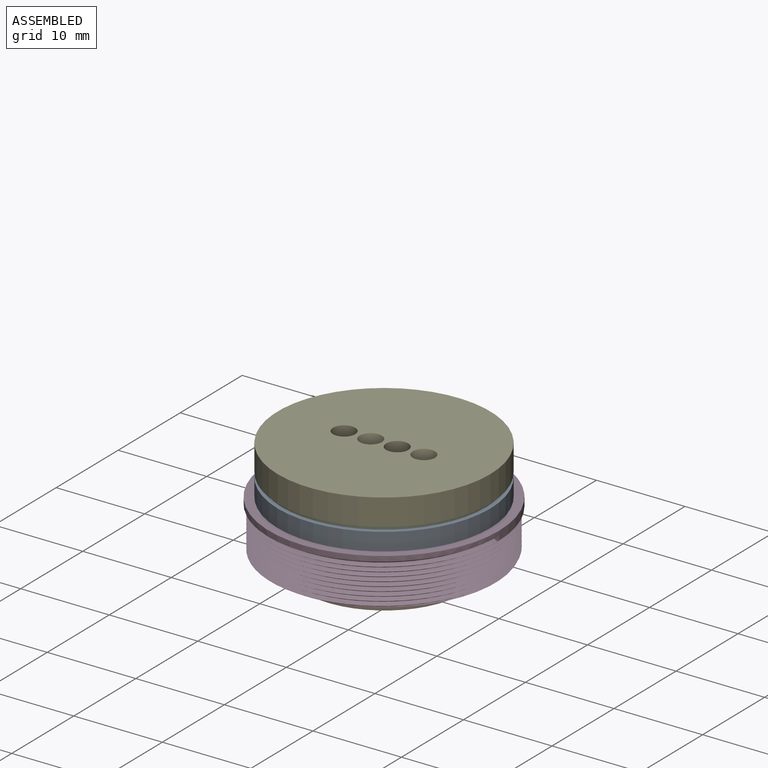
[diagram: assembled view]
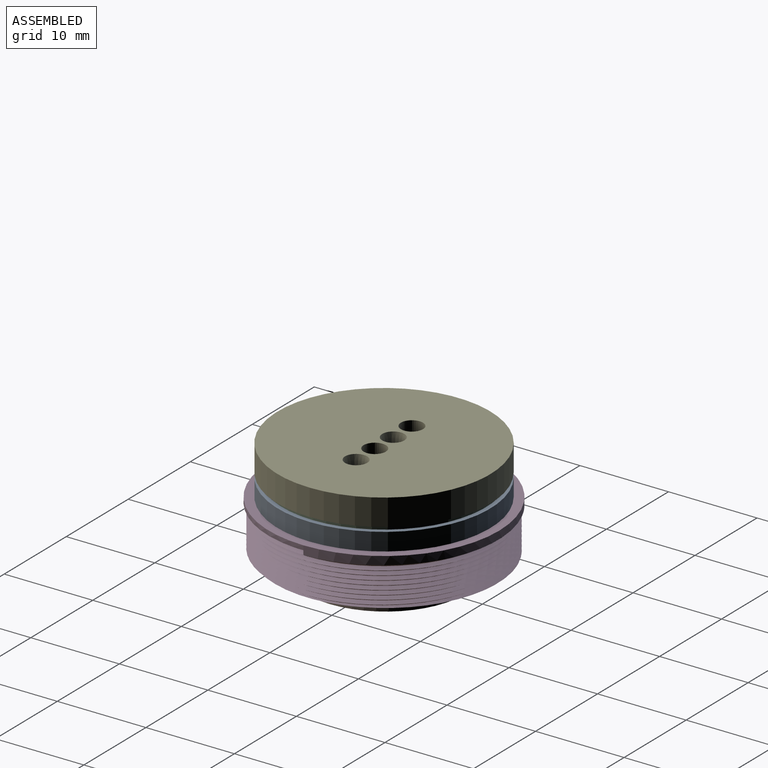
[diagram: assembled view, second angle]
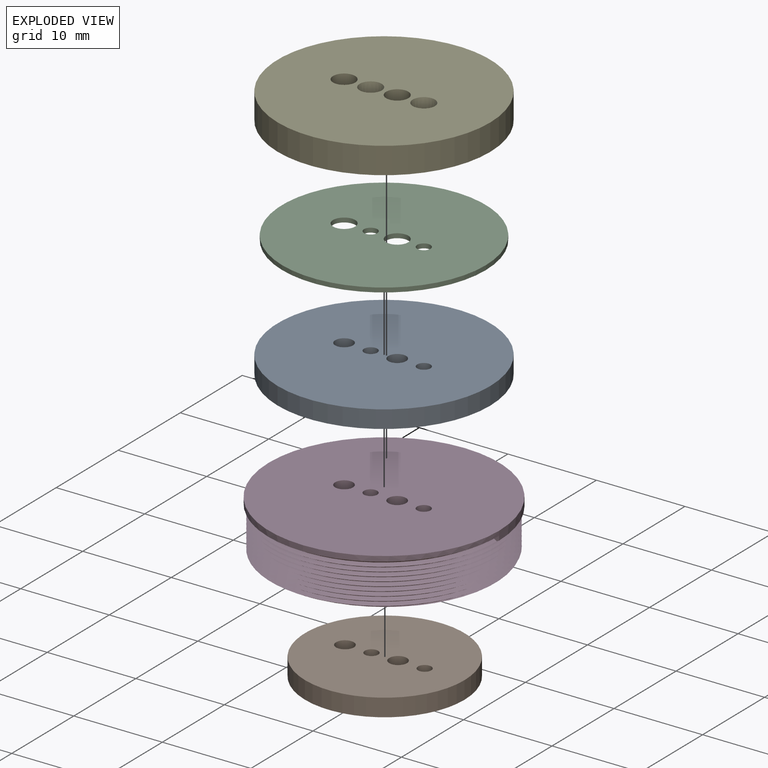
[diagram: exploded view]
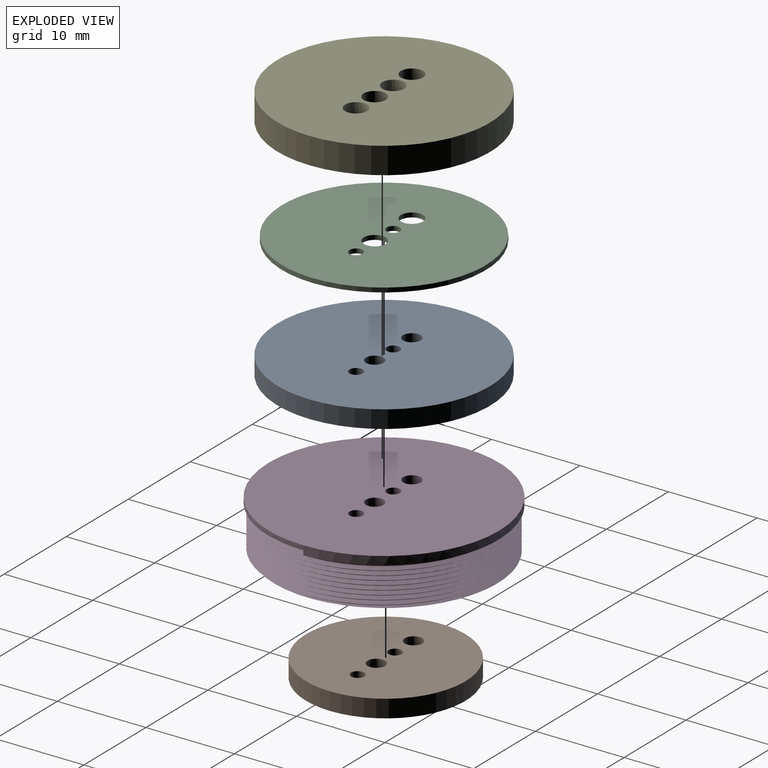
[diagram: exploded view, second angle]
ASSEMBLY  parts=5 mates=4
PART A: 7 faces, bbox 24x24x2 mm
  f0: cylinder r=12mm len=24mm, axis (0,0,-1), area 150.8mm2, adj f1,f2
  f1: plane 24x24mm, normal (0,0,1), area 442.6mm2, adj f0,f3,f4,f5,f6
  f2: plane 24x24mm, normal (0,0,-1), area 442.6mm2, adj f0,f3,f4,f5,f6
  f3: cylinder r=1mm len=2mm, axis (0,0,-1), area 12.6mm2, adj f1,f2
  f4: cylinder r=0.75mm len=2mm, axis (0,0,-1), area 9.4mm2, adj f1,f2
  f5: cylinder r=1mm len=2mm, axis (0,0,-1), area 12.6mm2, adj f1,f2
  f6: cylinder r=0.75mm len=2mm, axis (0,0,-1), area 9.4mm2, adj f1,f2
PART B: 7 faces, bbox 18x18x2 mm
  f0: cylinder r=9mm len=18mm, axis (0,0,-1), area 113.1mm2, adj f1,f2
  f1: plane 18x18mm, normal (0,0,1), area 244.7mm2, adj f0,f3,f4,f5,f6
  f2: plane 18x18mm, normal (0,0,-1), area 244.7mm2, adj f0,f3,f4,f5,f6
  f3: cylinder r=1mm len=2mm, axis (0,0,-1), area 12.6mm2, adj f1,f2
  f4: cylinder r=0.75mm len=2mm, axis (0,0,-1), area 9.4mm2, adj f1,f2
  f5: cylinder r=1mm len=2mm, axis (0,0,-1), area 12.6mm2, adj f1,f2
  f6: cylinder r=0.75mm len=2mm, axis (0,0,-1), area 9.4mm2, adj f1,f2
PART C: 7 faces, bbox 23x23x0.5 mm
  f0: cylinder r=11.5mm len=23mm, axis (0,0,-1), area 36.1mm2, adj f1,f2
  f1: plane 23x23mm, normal (0,0,1), area 402.1mm2, adj f0,f3,f4,f5,f6
  f2: plane 23x23mm, normal (0,0,-1), area 402.1mm2, adj f0,f3,f4,f5,f6
  f3: cylinder r=1.25mm len=2.5mm, axis (0,0,-1), area 3.9mm2, adj f1,f2
  f4: cylinder r=0.75mm len=1.5mm, axis (0,0,-1), area 2.4mm2, adj f1,f2
  f5: cylinder r=1.25mm len=2.5mm, axis (0,0,-1), area 3.9mm2, adj f1,f2
  f6: cylinder r=0.75mm len=1.5mm, axis (0,0,-1), area 2.4mm2, adj f1,f2
PART D: 11 faces, bbox 26.3x30.3x6.1 mm
  f0: cylinder r=13mm len=26mm, axis (0,0,-1), area 61.3mm2, adj f1,f4,f5
  f1: plane 26x26mm, normal (0,0,1), area 521.1mm2, adj f0,f7,f8,f9,f10
  f2: bspline ~29.44x25.5mm, area 371.6mm2, adj f3,f4,f5,f6
  f3: bspline ~29.44x25.5mm, area 353.8mm2, adj f2,f4,f6
  f4: plane 0.68x0.64mm, normal (0,-1,0), area 0.2mm2, adj f0,f2,f3,f5
  f5: bspline ~30.02x26mm, area 23.4mm2, adj f0,f2,f4
  f6: plane 25.38x25.38mm, normal (0,0,-1), area 483.7mm2, adj f2,f3,f7,f8,f9,f10
  f7: cylinder r=1mm len=5.5mm, axis (0,0,-1), area 34.6mm2, adj f1,f6
  f8: cylinder r=0.75mm len=5.5mm, axis (0,0,-1), area 25.9mm2, adj f1,f6
  f9: cylinder r=1mm len=5.5mm, axis (0,0,-1), area 34.6mm2, adj f1,f6
  f10: cylinder r=0.75mm len=5.5mm, axis (0,0,-1), area 25.9mm2, adj f1,f6
PART E: 7 faces, bbox 24x24x3 mm
  f0: cylinder r=12mm len=24mm, axis (0,0,-1), area 226.2mm2, adj f1,f2
  f1: plane 24x24mm, normal (0,0,1), area 432.8mm2, adj f0,f3,f4,f5,f6
  f2: plane 24x24mm, normal (0,0,-1), area 438.8mm2, adj f0,f3,f4,f5,f6
  f3: cylinder r=1.25mm len=3mm, axis (0,0,-1), area 23.6mm2, adj f1,f2
  f4: cylinder r=1.25mm len=3mm, axis (0,0,-1), area 23.6mm2, adj f1,f2
  f5: cone r=1.25mm half-angle=9deg, axis (0,0,1), area 19.3mm2, adj f1,f2
  f6: cone r=1.25mm half-angle=9deg, axis (0,0,1), area 19.3mm2, adj f1,f2
PLACE A rot(axis=(1,0,0),180deg) t=(29.33,-27.58,-31.15)mm
PLACE B rot(axis=(1,0,0),180deg) t=(29.3,-27.4,-38.65)mm
PLACE C rot(axis=(1,0,0),180deg) t=(29.33,-27.58,-30.65)mm
PLACE D t=(29.33,-27.58,-38.65)mm
PLACE E t=(29.33,-27.58,-30.65)mm
MATE planar B.f0 <-> D.f6  axis (0,0,1) through (29.3,-27.4,-38.65)mm
MATE planar A.f0 <-> C.f0  axis (0,0,1) through (29.33,-27.58,-31.15)mm
MATE planar D.f0 <-> A.f0  axis (0,0,1) through (29.33,-27.58,-33.15)mm
MATE planar E.f0 <-> C.f0  axis (0,0,-1) through (29.33,-27.58,-30.65)mm
